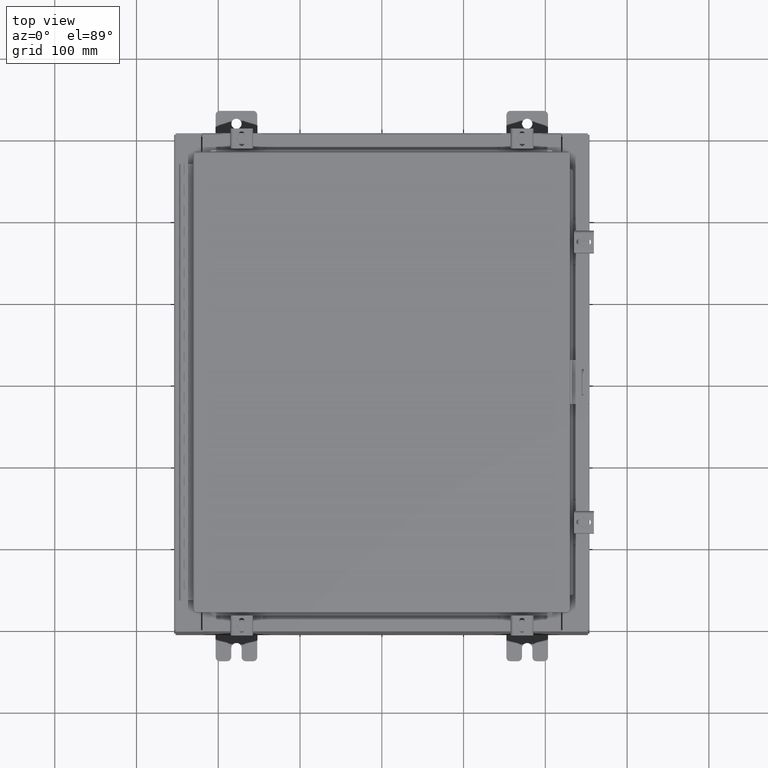
[diagram: clean part render]
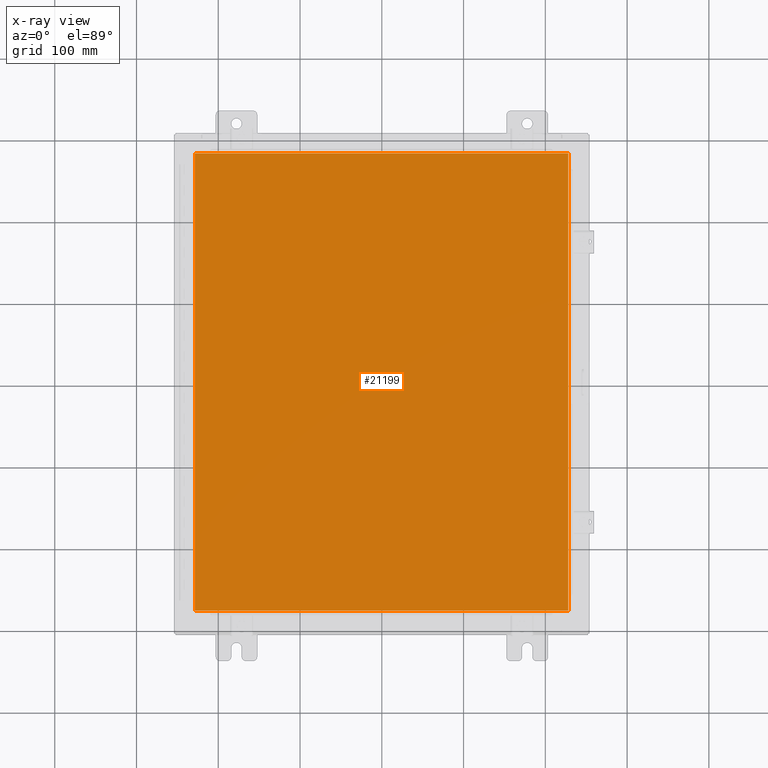
[diagram: x-ray — body ghosted, one internal face saturated and labeled with its STEP entity id]
A machine part, top view, then the same camera in x-ray: the body is ghosted and one INTERNAL B-rep face — a face not visible from any outside direction — is saturated and labeled: STEP entity #21199.
In plain terms, the highlighted planar face has unit normal (0, 0, -1).
Its self-contained STEP definition (entity closure, byte-faithful):
#82 = DIRECTION ( 'NONE',  ( 0.0000000000000000000, -1.000000000000000000, 0.0000000000000000000 ) ) ;
#954 = VECTOR ( 'NONE', #12277, 39.37007874015748100 ) ;
#1032 = VERTEX_POINT ( 'NONE', #9566 ) ;
#1586 = VECTOR ( 'NONE', #14629, 39.37007874015748100 ) ;
#2021 = CARTESIAN_POINT ( 'NONE',  ( 8.990299999999997700, -11.00630000000000000, -0.07470000000000015500 ) ) ;
#2638 = CARTESIAN_POINT ( 'NONE',  ( -8.990299999999999500, 11.00630000000000100, -0.07470000000000015500 ) ) ;
#2658 = AXIS2_PLACEMENT_3D ( 'NONE', #31839, #14179, #31950 ) ;
#3110 = CARTESIAN_POINT ( 'NONE',  ( -8.990300000000001300, -11.00630000000000100, -0.07470000000000015500 ) ) ;
#4679 = VERTEX_POINT ( 'NONE', #21125 ) ;
#5136 = CARTESIAN_POINT ( 'NONE',  ( 8.990299999999997700, -11.00630000000000000, -0.07470000000000015500 ) ) ;
#5695 = DIRECTION ( 'NONE',  ( 1.000000000000000000, -0.0000000000000000000, -0.0000000000000000000 ) ) ;
#7744 = LINE ( 'NONE', #2021, #954 ) ;
#8674 = CARTESIAN_POINT ( 'NONE',  ( -8.990299999999999500, 11.00630000000000000, -0.07470000000000015500 ) ) ;
#9059 = PLANE ( 'NONE',  #2658 ) ;
#9566 = CARTESIAN_POINT ( 'NONE',  ( 8.990299999999997700, 11.00630000000000000, -0.07470000000000015500 ) ) ;
#11695 = EDGE_CURVE ( 'NONE', #4679, #22575, #21960, .T. ) ;
#11870 = ORIENTED_EDGE ( 'NONE', *, *, #11695, .F. ) ;
#12064 = CARTESIAN_POINT ( 'NONE',  ( 8.990299999999999500, 11.00630000000000000, -0.07470000000000015500 ) ) ;
#12195 = ORIENTED_EDGE ( 'NONE', *, *, #16682, .F. ) ;
#12277 = DIRECTION ( 'NONE',  ( 0.0000000000000000000, 1.000000000000000000, 0.0000000000000000000 ) ) ;
#12966 = ORIENTED_EDGE ( 'NONE', *, *, #31113, .F. ) ;
#14179 = DIRECTION ( 'NONE',  ( 0.0000000000000000000, 0.0000000000000000000, -1.000000000000000000 ) ) ;
#14629 = DIRECTION ( 'NONE',  ( -1.000000000000000000, -0.0000000000000000000, -0.0000000000000000000 ) ) ;
#16682 = EDGE_CURVE ( 'NONE', #22575, #1032, #7744, .T. ) ;
#18789 = VECTOR ( 'NONE', #5695, 39.37007874015748100 ) ;
#19735 = VERTEX_POINT ( 'NONE', #8674 ) ;
#20356 = LINE ( 'NONE', #2638, #32258 ) ;
#21125 = CARTESIAN_POINT ( 'NONE',  ( -8.990299999999997700, -11.00630000000000100, -0.07470000000000015500 ) ) ;
#21199 = ADVANCED_FACE ( 'NONE', ( #25228 ), #9059, .T. ) ;
#21910 = LINE ( 'NONE', #12064, #1586 ) ;
#21960 = LINE ( 'NONE', #3110, #18789 ) ;
#22575 = VERTEX_POINT ( 'NONE', #5136 ) ;
#25228 = FACE_OUTER_BOUND ( 'NONE', #32931, .T. ) ;
#26891 = ORIENTED_EDGE ( 'NONE', *, *, #30674, .F. ) ;
#30674 = EDGE_CURVE ( 'NONE', #19735, #4679, #20356, .T. ) ;
#31113 = EDGE_CURVE ( 'NONE', #1032, #19735, #21910, .T. ) ;
#31839 = CARTESIAN_POINT ( 'NONE',  ( 0.0000000000000000000, 0.0000000000000000000, -0.07470000000000015500 ) ) ;
#31950 = DIRECTION ( 'NONE',  ( -1.000000000000000000, 0.0000000000000000000, -0.0000000000000000000 ) ) ;
#32258 = VECTOR ( 'NONE', #82, 39.37007874015748100 ) ;
#32931 = EDGE_LOOP ( 'NONE', ( #12195, #11870, #26891, #12966 ) ) ;